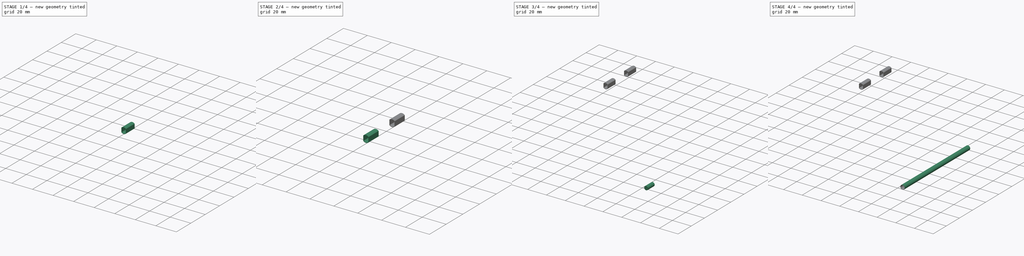
[diagram: build sequence overview — one tinted view per stage of 4, left to right]
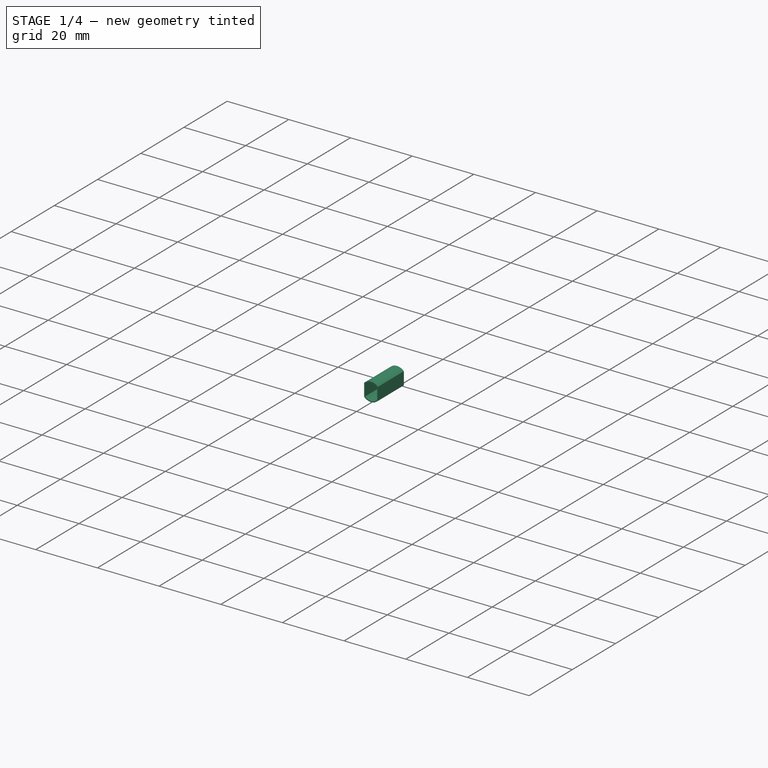
[diagram: stage 1 of 4 — iso view after this stage's code; geometry added in this stage tinted green]
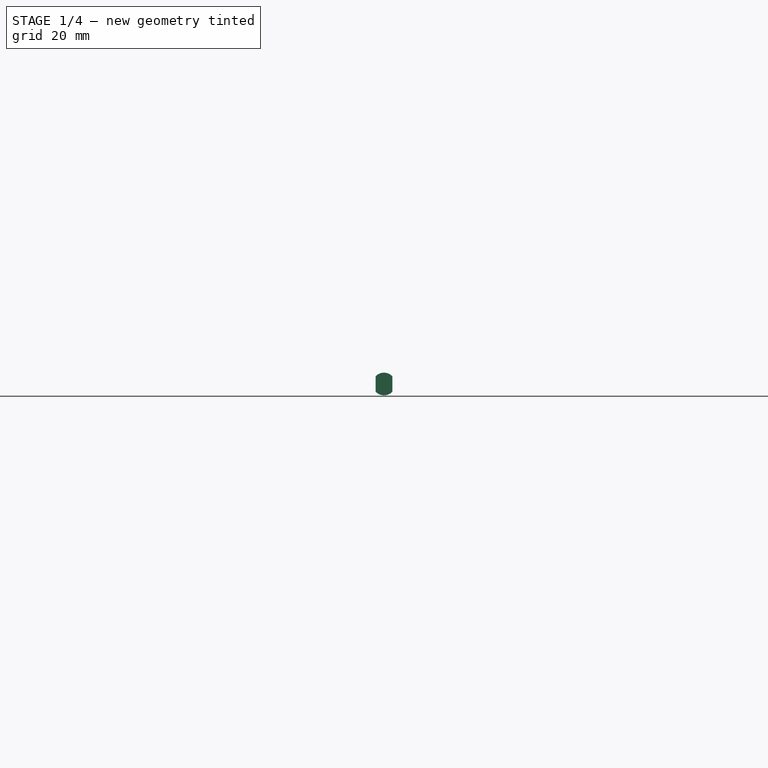
[diagram: stage 1 of 4 — front view after this stage's code; geometry added in this stage tinted green]
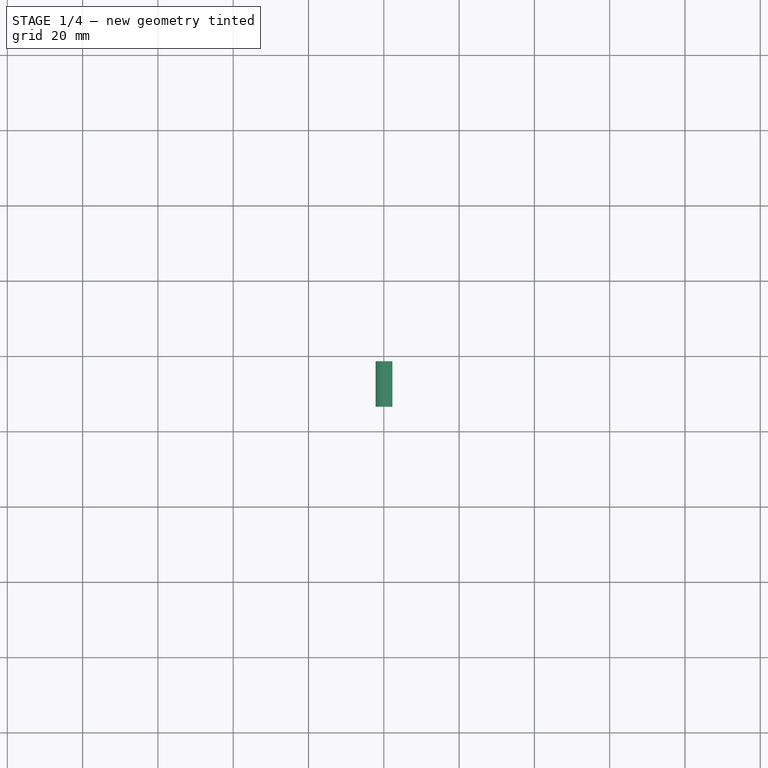
[diagram: stage 1 of 4 — top view after this stage's code; geometry added in this stage tinted green]
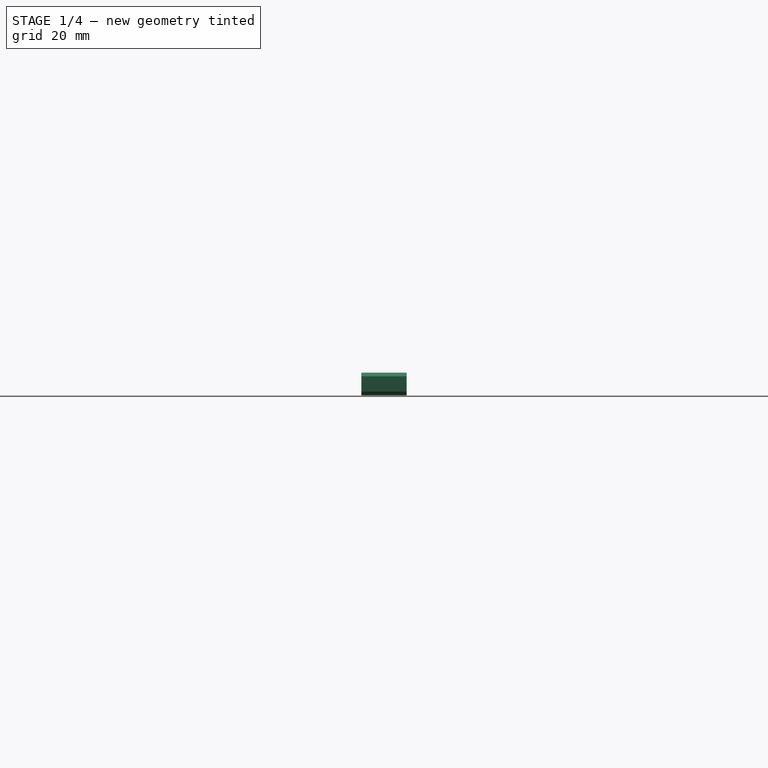
[diagram: stage 1 of 4 — right view after this stage's code; geometry added in this stage tinted green]
FCSTD DOCUMENT  (FreeCAD 0.20R29410 (Git))
Label: Ejes
License: Creative Commons Attribution-ShareAlike
LicenseURL: http://creativecommons.org/licenses/by-sa/4.0/
objects: Sketcher::SketchObject×7, Part::Extrusion×7, Part::Cut×4
note: 18 computed .brp shape members not serialized (recipe doc carries the construction recipe); baked Part::Feature solids carry a one-line shape summary decoded from their .brp

FEATURE [Sketcher::SketchObject] Sketch179
  FullyConstrained = false
  MapMode = 5
  Placement = pos=(-4e-15,-17.4,11) rot=(0,0.707107,0.707107;3.14159rad)
  sketch-geometry (9):
    g0: LineSegment StartX=-2.03 StartY=-8.74874 StartZ=0 EndX=2.03 EndY=-8.74874 EndZ=0
    g1: LineSegment StartX=2.03 StartY=-8.74874 StartZ=0 EndX=2.03 EndY=-13.2087 EndZ=0
    g2: LineSegment StartX=2.03 StartY=-13.2087 StartZ=0 EndX=-2.03 EndY=-13.2087 EndZ=0
    g3: LineSegment StartX=-2.03 StartY=-13.2087 StartZ=0 EndX=-2.03 EndY=-8.74874 EndZ=0
    g4: LineSegment StartX=-2.03 StartY=-8.74874 StartZ=0 EndX=2.03 EndY=-13.2087 EndZ=0
    g5: LineSegment StartX=2.03 StartY=-8.74874 StartZ=0 EndX=-2.03 EndY=-13.2087 EndZ=0
    g6: GeomPoint X=3e-16 Y=-10.9787 Z=0
    g7: ArcOfCircle CenterX=3e-16 CenterY=-10.9787 CenterZ=0 NormalX=0 NormalY=0 NormalZ=1 AngleXU=0 Radius=3.01559 StartAngle=2.30928 EndAngle=3.9739
    g8: ArcOfCircle CenterX=3e-16 CenterY=-10.9787 CenterZ=0 NormalX=0 NormalY=0 NormalZ=1 AngleXU=0 Radius=3.01559 StartAngle=5.45087 EndAngle=7.1155
  constraints (19):
    c: Coincident(g0,g1)
    c: Coincident(g1,g2)
    c: Horizontal(g2)
    c: Coincident(g2,g3)
    c: Coincident(g3,g0)
    c: Coincident(g4,g0)
    c: Coincident(g4,g2)
    c: Coincident(g5,g0)
    c: Coincident(g5,g2)
    c: Symmetric(g4,g4,g6)
    c: Symmetric(g0,g0,g-2)
    c: Coincident(g7,g6)
    c: Coincident(g7,g0)
    c: Coincident(g7,g2)
    c: Coincident(g8,g7)
    c: Coincident(g8,g2)
    c: Coincident(g8,g0)
    c: DistanceX(g0,g0) = 4.06
    c: DistanceY(g1,g1) = 4.46
FEATURE [Part::Extrusion] Extrude196  label="Pieza Clave motor018"
  Base = -> Sketch179
  Dir = (0,1,-2e-16)
  DirMode = 2
  FaceMakerClass = Part::FaceMakerBullseye
  LengthFwd = 12
  LengthRev = 0
  Placement = pos=(-59.925,164.05,20.2194) rot=(0,-1,0;1.5708rad)
  Solid = true
  Symmetric = false
FEATURE [Sketcher::SketchObject] Sketch180
  FullyConstrained = false
  MapMode = 5
  Placement = pos=(-4e-15,-17.4,11) rot=(0,0.707107,0.707107;3.14159rad)
  sketch-geometry (9):
    g0: LineSegment StartX=-1.85 StartY=-8.97606 StartZ=0 EndX=1.85 EndY=-8.97606 EndZ=0
    g1: LineSegment StartX=1.85 StartY=-8.97606 StartZ=0 EndX=1.85 EndY=-12.8761 EndZ=0
    g2: LineSegment StartX=1.85 StartY=-12.8761 StartZ=0 EndX=-1.85 EndY=-12.8761 EndZ=0
    g3: LineSegment StartX=-1.85 StartY=-12.8761 StartZ=0 EndX=-1.85 EndY=-8.97606 EndZ=0
    g4: LineSegment StartX=-1.85 StartY=-8.97606 StartZ=0 EndX=1.85 EndY=-12.8761 EndZ=0
    g5: LineSegment StartX=1.85 StartY=-8.97606 StartZ=0 EndX=-1.85 EndY=-12.8761 EndZ=0
    g6: GeomPoint X=2e-16 Y=-10.9261 Z=0
    g7: ArcOfCircle CenterX=2e-16 CenterY=-10.9261 CenterZ=0 NormalX=0 NormalY=0 NormalZ=1 AngleXU=0 Radius=2.68794 StartAngle=2.32988 EndAngle=3.9533
    g8: ArcOfCircle CenterX=2e-16 CenterY=-10.9261 CenterZ=0 NormalX=0 NormalY=0 NormalZ=1 AngleXU=0 Radius=2.68794 StartAngle=5.47148 EndAngle=7.09489
  constraints (19):
    c: Coincident(g0,g1)
    c: Coincident(g1,g2)
    c: Horizontal(g2)
    c: Coincident(g2,g3)
    c: Coincident(g3,g0)
    c: Coincident(g4,g0)
    c: Coincident(g4,g2)
    c: Coincident(g5,g0)
    c: Coincident(g5,g2)
    c: Symmetric(g4,g4,g6)
    c: Symmetric(g0,g0,g-2)
    c: Coincident(g7,g6)
    c: Coincident(g7,g0)
    c: Coincident(g7,g2)
    c: Coincident(g8,g7)
    c: Coincident(g8,g2)
    c: Coincident(g8,g0)
    c: DistanceX(g0,g0) = 3.7
    c: DistanceY(g1,g1) = 3.9
FEATURE [Part::Extrusion] Extrude197  label="Pieza Clave motor019"
  Base = -> Sketch180
  Dir = (0,1,-2e-16)
  DirMode = 2
  FaceMakerClass = Part::FaceMakerBullseye
  LengthFwd = 40
  LengthRev = 0
  Placement = pos=(-59.84,131.9,20.22) rot=(0,-1,0;1.5708rad)
  Solid = true
  Symmetric = false
FEATURE [Part::Cut] Cut111
  Base = -> Extrude196
  Refine = true
  Tool = -> Extrude197
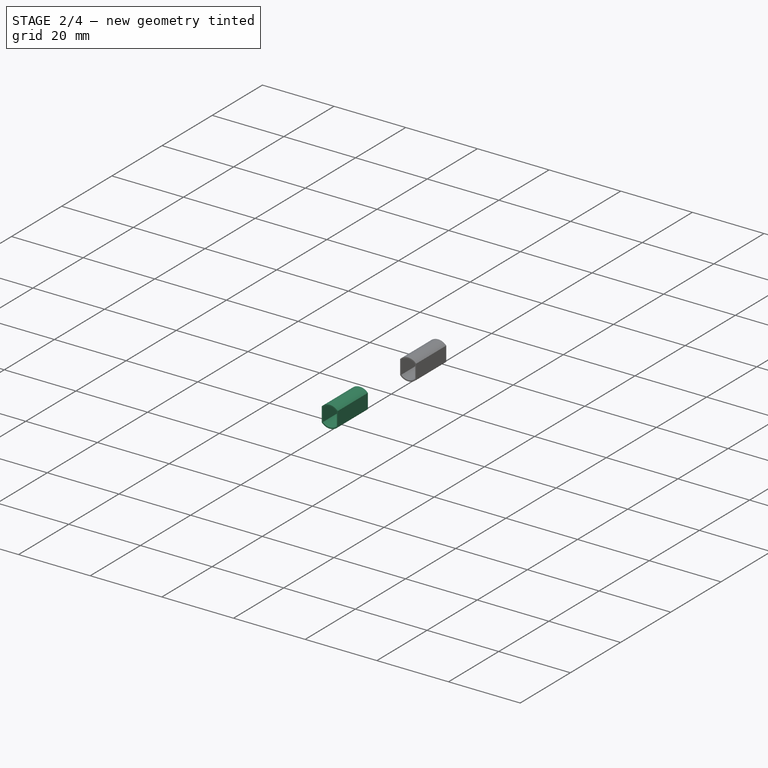
[diagram: stage 2 of 4 — iso view after this stage's code; geometry added in this stage tinted green]
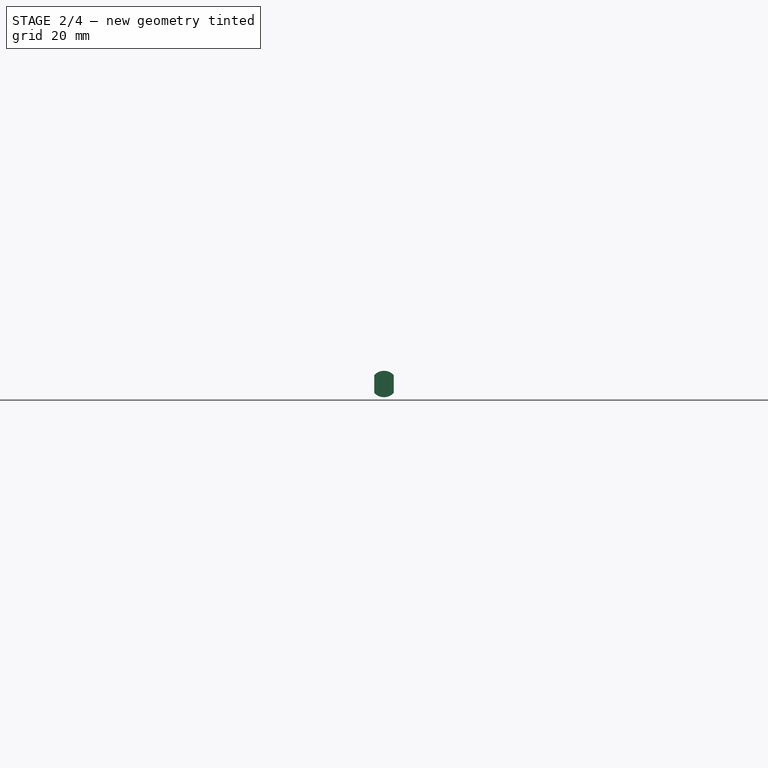
[diagram: stage 2 of 4 — front view after this stage's code; geometry added in this stage tinted green]
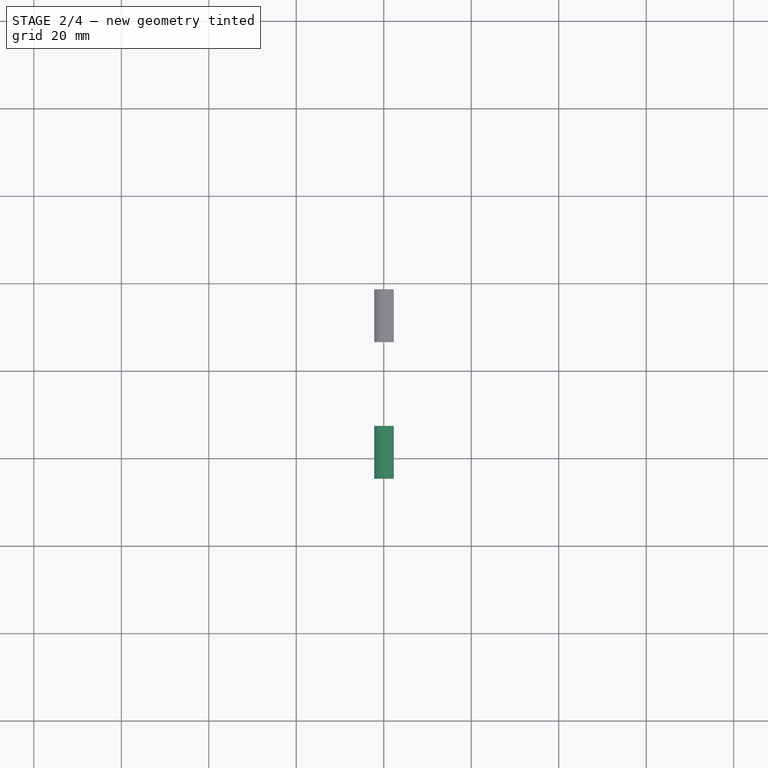
[diagram: stage 2 of 4 — top view after this stage's code; geometry added in this stage tinted green]
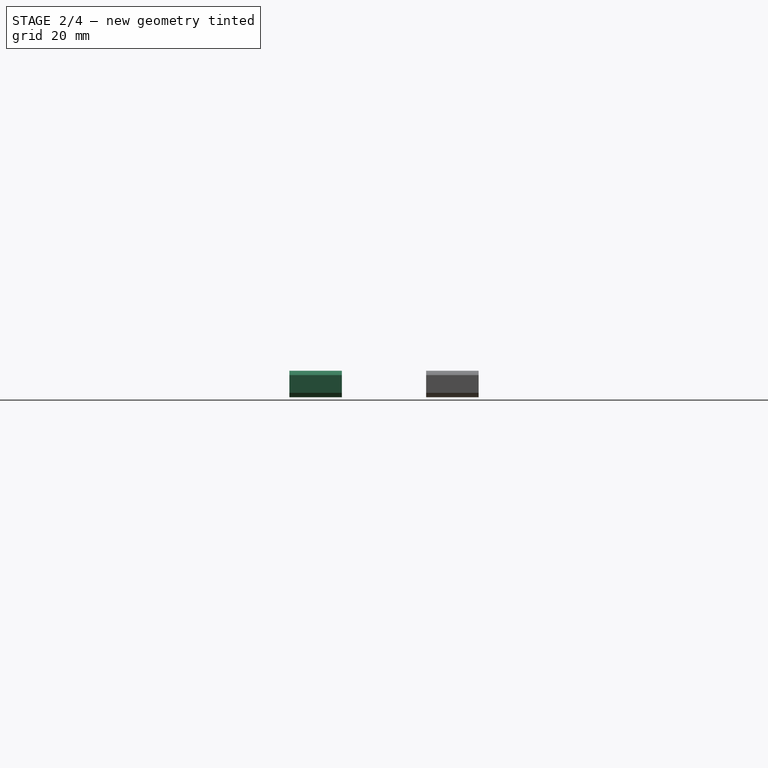
[diagram: stage 2 of 4 — right view after this stage's code; geometry added in this stage tinted green]
FEATURE [Sketcher::SketchObject] Sketch169
  FullyConstrained = false
  MapMode = 5
  Placement = pos=(-4e-15,-17.4,11) rot=(0,0.707107,0.707107;3.14159rad)
  sketch-geometry (9):
    g0: LineSegment StartX=-2.03 StartY=-8.74874 StartZ=0 EndX=2.03 EndY=-8.74874 EndZ=0
    g1: LineSegment StartX=2.03 StartY=-8.74874 StartZ=0 EndX=2.03 EndY=-13.2087 EndZ=0
    g2: LineSegment StartX=2.03 StartY=-13.2087 StartZ=0 EndX=-2.03 EndY=-13.2087 EndZ=0
    g3: LineSegment StartX=-2.03 StartY=-13.2087 StartZ=0 EndX=-2.03 EndY=-8.74874 EndZ=0
    g4: LineSegment StartX=-2.03 StartY=-8.74874 StartZ=0 EndX=2.03 EndY=-13.2087 EndZ=0
    g5: LineSegment StartX=2.03 StartY=-8.74874 StartZ=0 EndX=-2.03 EndY=-13.2087 EndZ=0
    g6: GeomPoint X=3e-16 Y=-10.9787 Z=0
    g7: ArcOfCircle CenterX=3e-16 CenterY=-10.9787 CenterZ=0 NormalX=0 NormalY=0 NormalZ=1 AngleXU=0 Radius=3.01559 StartAngle=2.30928 EndAngle=3.9739
    g8: ArcOfCircle CenterX=3e-16 CenterY=-10.9787 CenterZ=0 NormalX=0 NormalY=0 NormalZ=1 AngleXU=0 Radius=3.01559 StartAngle=5.45087 EndAngle=7.1155
  constraints (19):
    c: Coincident(g0,g1)
    c: Coincident(g1,g2)
    c: Horizontal(g2)
    c: Coincident(g2,g3)
    c: Coincident(g3,g0)
    c: Coincident(g4,g0)
    c: Coincident(g4,g2)
    c: Coincident(g5,g0)
    c: Coincident(g5,g2)
    c: Symmetric(g4,g4,g6)
    c: Symmetric(g0,g0,g-2)
    c: Coincident(g7,g6)
    c: Coincident(g7,g0)
    c: Coincident(g7,g2)
    c: Coincident(g8,g7)
    c: Coincident(g8,g2)
    c: Coincident(g8,g0)
    c: DistanceX(g0,g0) = 4.06
    c: DistanceY(g1,g1) = 4.46
FEATURE [Part::Extrusion] Extrude188  label="Pieza Clave motor011"
  Base = -> Sketch169
  Dir = (0,1,-2e-16)
  DirMode = 2
  FaceMakerClass = Part::FaceMakerBullseye
  LengthFwd = 12
  LengthRev = 0
  Placement = pos=(-59.925,164.05,20.2194) rot=(0,-1,0;1.5708rad)
  Solid = true
  Symmetric = false
FEATURE [Sketcher::SketchObject] Sketch174
  FullyConstrained = false
  MapMode = 5
  Placement = pos=(-4e-15,-17.4,11) rot=(0,0.707107,0.707107;3.14159rad)
  sketch-geometry (9):
    g0: LineSegment StartX=-1.85 StartY=-8.97606 StartZ=0 EndX=1.85 EndY=-8.97606 EndZ=0
    g1: LineSegment StartX=1.85 StartY=-8.97606 StartZ=0 EndX=1.85 EndY=-12.8761 EndZ=0
    g2: LineSegment StartX=1.85 StartY=-12.8761 StartZ=0 EndX=-1.85 EndY=-12.8761 EndZ=0
    g3: LineSegment StartX=-1.85 StartY=-12.8761 StartZ=0 EndX=-1.85 EndY=-8.97606 EndZ=0
    g4: LineSegment StartX=-1.85 StartY=-8.97606 StartZ=0 EndX=1.85 EndY=-12.8761 EndZ=0
    g5: LineSegment StartX=1.85 StartY=-8.97606 StartZ=0 EndX=-1.85 EndY=-12.8761 EndZ=0
    g6: GeomPoint X=2e-16 Y=-10.9261 Z=0
    g7: ArcOfCircle CenterX=2e-16 CenterY=-10.9261 CenterZ=0 NormalX=0 NormalY=0 NormalZ=1 AngleXU=0 Radius=2.68794 StartAngle=2.32988 EndAngle=3.9533
    g8: ArcOfCircle CenterX=2e-16 CenterY=-10.9261 CenterZ=0 NormalX=0 NormalY=0 NormalZ=1 AngleXU=0 Radius=2.68794 StartAngle=5.47148 EndAngle=7.09489
  constraints (19):
    c: Coincident(g0,g1)
    c: Coincident(g1,g2)
    c: Horizontal(g2)
    c: Coincident(g2,g3)
    c: Coincident(g3,g0)
    c: Coincident(g4,g0)
    c: Coincident(g4,g2)
    c: Coincident(g5,g0)
    c: Coincident(g5,g2)
    c: Symmetric(g4,g4,g6)
    c: Symmetric(g0,g0,g-2)
    c: Coincident(g7,g6)
    c: Coincident(g7,g0)
    c: Coincident(g7,g2)
    c: Coincident(g8,g7)
    c: Coincident(g8,g2)
    c: Coincident(g8,g0)
    c: DistanceX(g0,g0) = 3.7
    c: DistanceY(g1,g1) = 3.9
FEATURE [Part::Extrusion] Extrude191  label="Pieza Clave motor013"
  Base = -> Sketch174
  Dir = (0,1,-2e-16)
  DirMode = 2
  FaceMakerClass = Part::FaceMakerBullseye
  LengthFwd = 40
  LengthRev = 0
  Placement = pos=(-59.84,131.9,20.22) rot=(0,-1,0;1.5708rad)
  Solid = true
  Symmetric = false
FEATURE [Part::Cut] Cut
  Base = -> Extrude188
  Placement = pos=(0,-31.25,0) rot=(0,0,1;0rad)
  Refine = true
  Tool = -> Extrude191
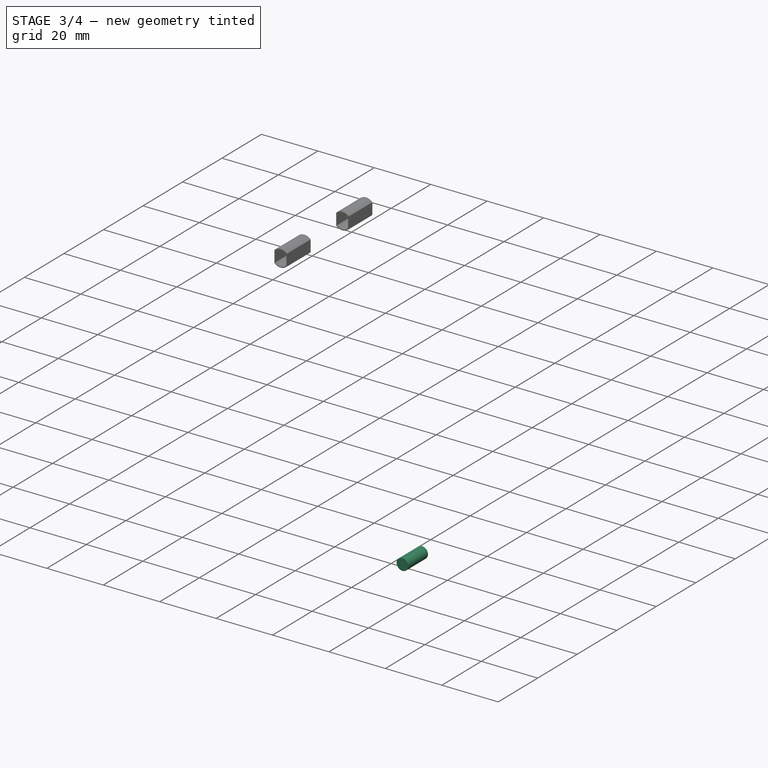
[diagram: stage 3 of 4 — iso view after this stage's code; geometry added in this stage tinted green]
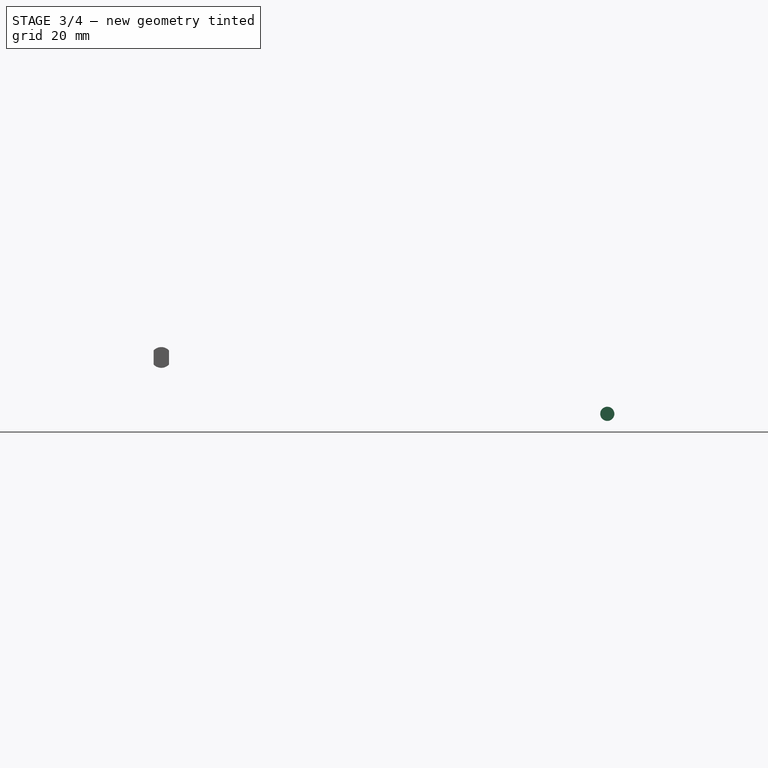
[diagram: stage 3 of 4 — front view after this stage's code; geometry added in this stage tinted green]
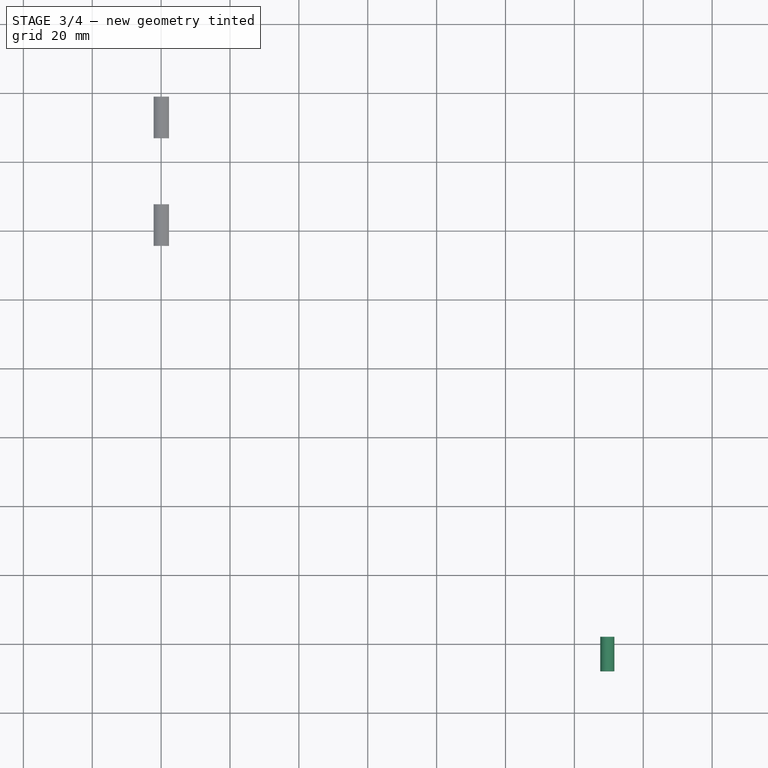
[diagram: stage 3 of 4 — top view after this stage's code; geometry added in this stage tinted green]
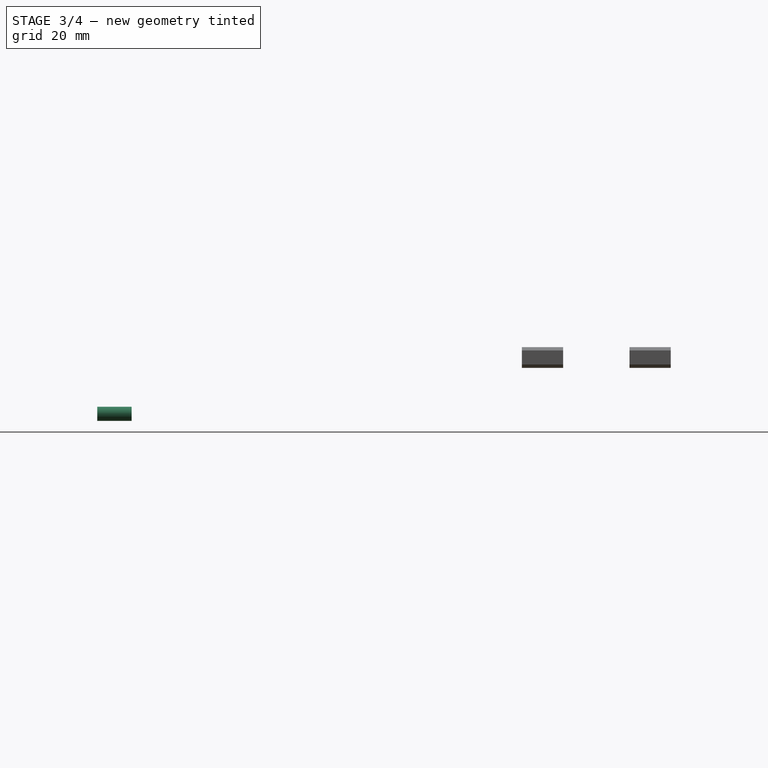
[diagram: stage 3 of 4 — right view after this stage's code; geometry added in this stage tinted green]
FEATURE [Sketcher::SketchObject] Sketch167
  FullyConstrained = false
  MapMode = 5
  Placement = pos=(-101,-107,1.1e-15) rot=(0.57735,-0.57735,-0.57735;2.0944rad)
  sketch-geometry (2):
    g0: LineSegment StartX=-140 StartY=20 StartZ=0 EndX=-130.017 EndY=20 EndZ=0
    g1: Circle CenterX=-135.008 CenterY=20 CenterZ=0 NormalX=0 NormalY=0 NormalZ=1 AngleXU=0 Radius=2.34
  constraints (3):
    c: Horizontal(g0)
    c: Symmetric(g0,g0,g1)
    c: Diameter(g1) = 4.68
FEATURE [Part::Extrusion] Extrude186  label="Tornillos048"
  Base = -> Sketch167
  Dir = (-1,2e-16,2e-16)
  DirMode = 2
  FaceMakerClass = Part::FaceMakerBullseye
  LengthFwd = 100
  LengthRev = 0
  Placement = pos=(97.5,194.9,-16.15) rot=(0,0,1;1.5708rad)
  Solid = true
  Symmetric = false
FEATURE [Sketcher::SketchObject] Sketch168
  FullyConstrained = false
  MapMode = 5
  Placement = pos=(97.5,93.9,-16.15) rot=(0,0.707107,0.707107;3.14159rad)
  Support = -> [Extrude186]
  sketch-geometry (1):
    g0: Circle CenterX=27.9437 CenterY=20 CenterZ=0 NormalX=0 NormalY=0 NormalZ=1 AngleXU=0 Radius=2.05629
FEATURE [Part::Extrusion] Extrude187
  Base = -> Sketch168
  Dir = (2e-16,1,-2e-16)
  DirMode = 2
  FaceMakerClass = Part::FaceMakerBullseye
  LengthFwd = 10
  LengthRev = 0
  Placement = pos=(0,-101.8,0) rot=(0,0,1;0rad)
  Solid = true
  Symmetric = false
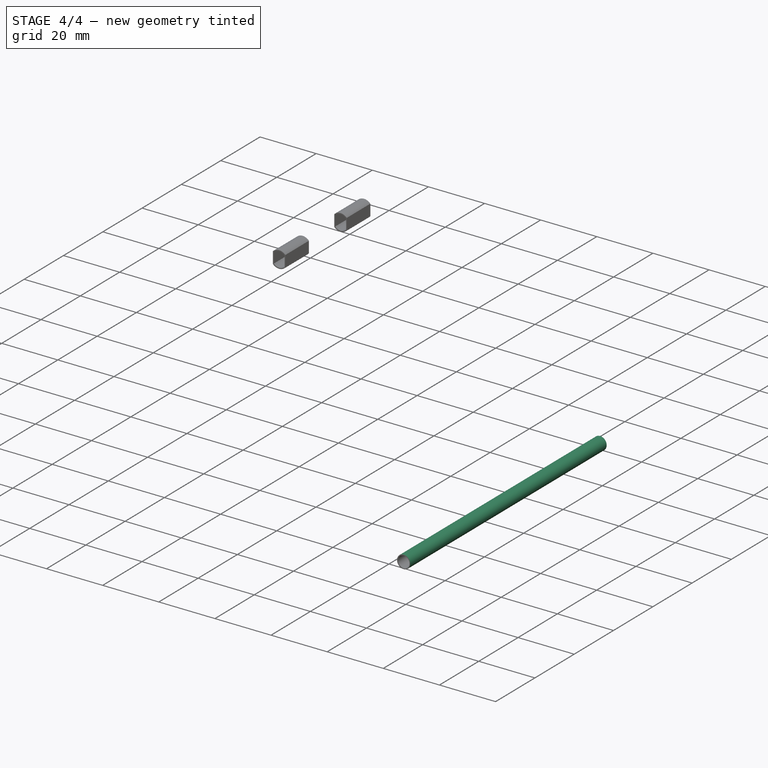
[diagram: stage 4 of 4 — iso view after this stage's code; geometry added in this stage tinted green]
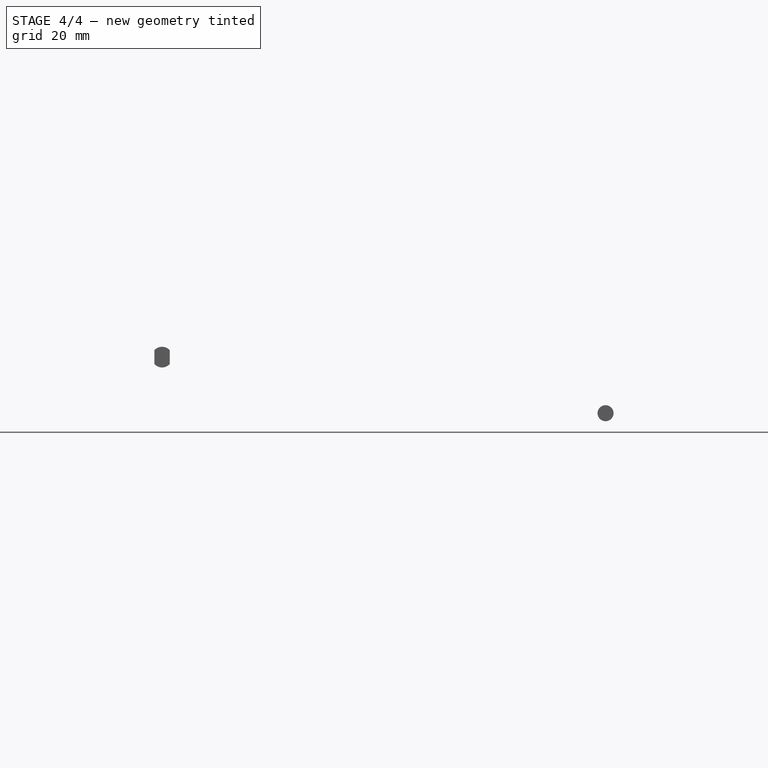
[diagram: stage 4 of 4 — front view after this stage's code; geometry added in this stage tinted green]
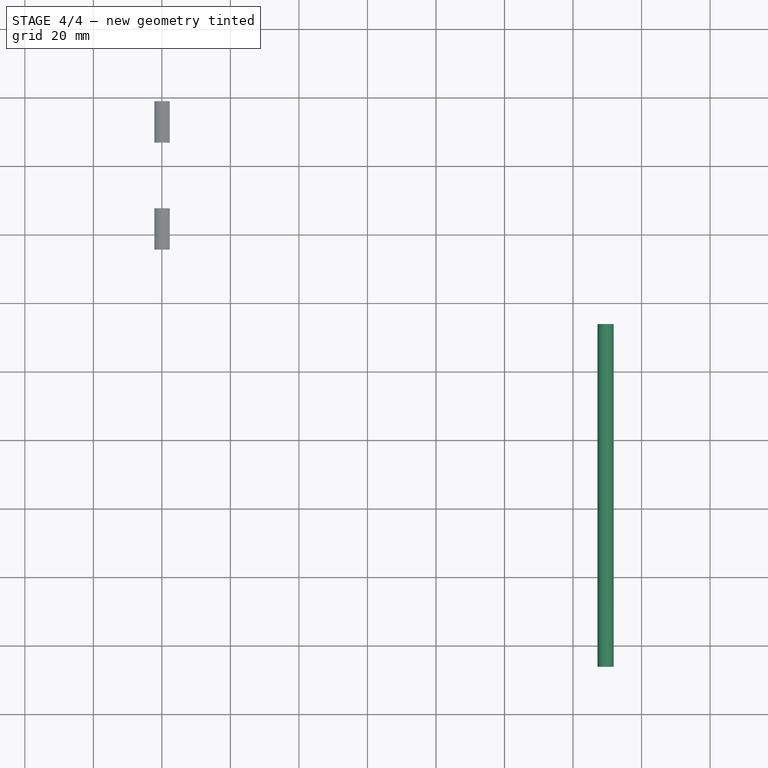
[diagram: stage 4 of 4 — top view after this stage's code; geometry added in this stage tinted green]
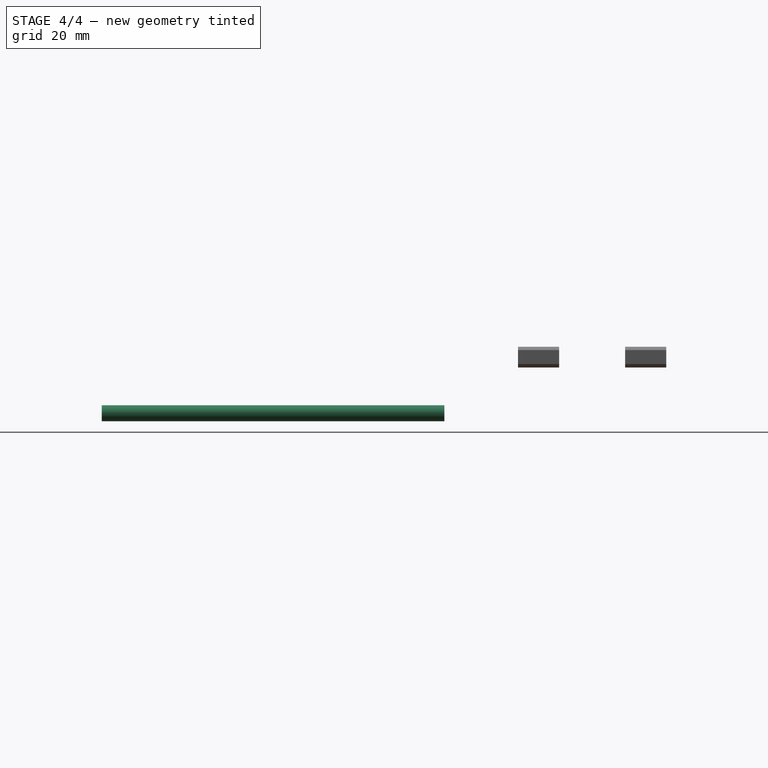
[diagram: stage 4 of 4 — right view after this stage's code; geometry added in this stage tinted green]
FEATURE [Sketcher::SketchObject] Sketch165
  FullyConstrained = false
  MapMode = 5
  Placement = pos=(97.5,93.9,-16.15) rot=(0,0.707107,0.707107;3.14159rad)
  sketch-geometry (1):
    g0: Circle CenterX=27.9437 CenterY=20 CenterZ=0 NormalX=0 NormalY=0 NormalZ=1 AngleXU=0 Radius=2.05629
FEATURE [Part::Extrusion] Extrude184
  Base = -> Sketch165
  Dir = (2e-16,1,-2e-16)
  DirMode = 2
  FaceMakerClass = Part::FaceMakerBullseye
  LengthFwd = 10
  LengthRev = 0
  Placement = pos=(0,-8.3,0) rot=(0,0,1;0rad)
  Solid = true
  Symmetric = false
FEATURE [Part::Cut] Cut108
  Base = -> Extrude186
  Refine = true
  Tool = -> Extrude187
FEATURE [Part::Cut] Cut109  label="Tubo"
  Base = -> Cut108
  Refine = true
  Tool = -> Extrude184
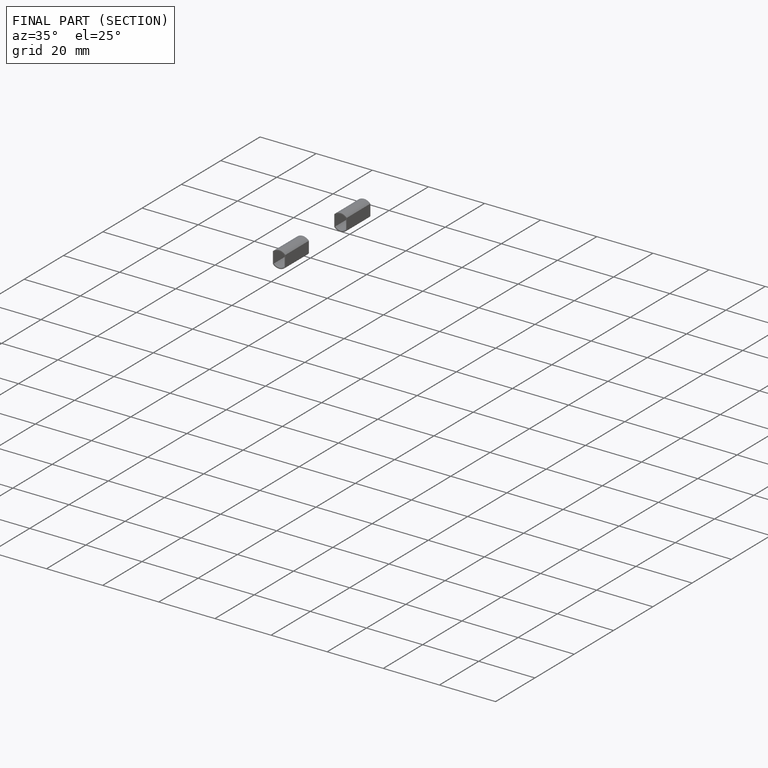
[diagram: finished part — half-section view (interior)]
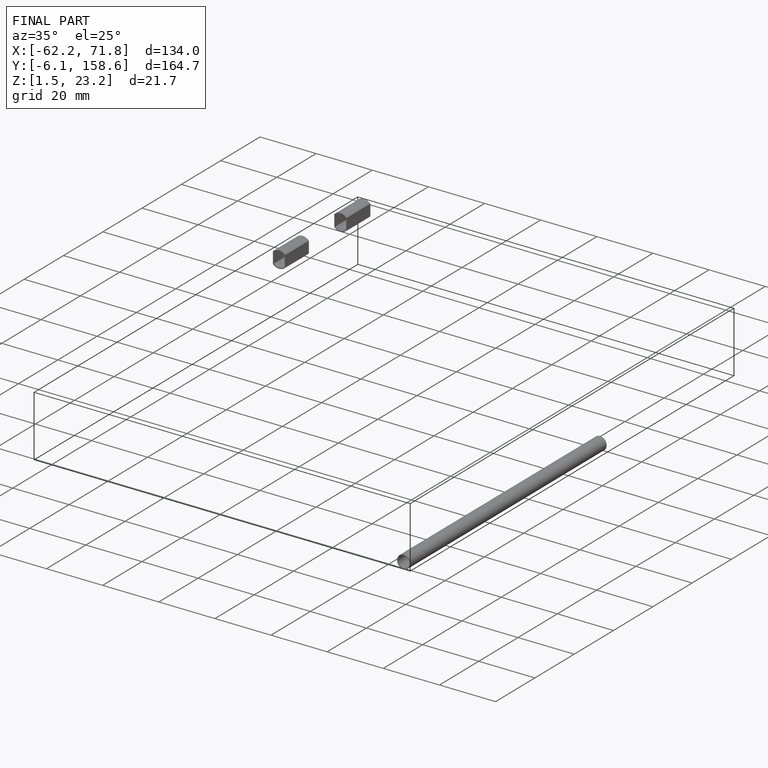
[diagram: finished part — iso view with bounding-box wireframe]
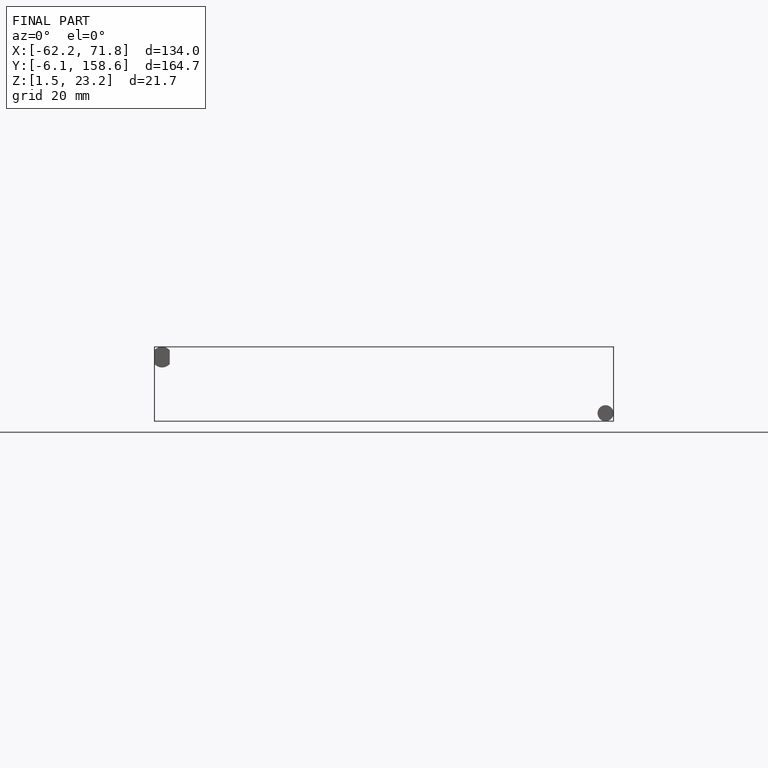
[diagram: finished part — front view with bounding-box wireframe]
